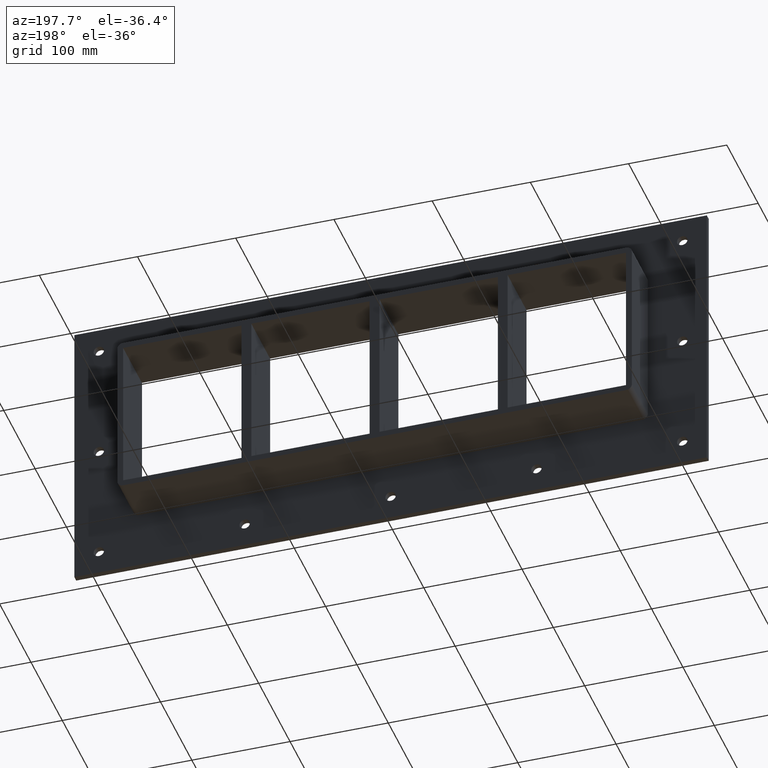
[diagram: clean part render]
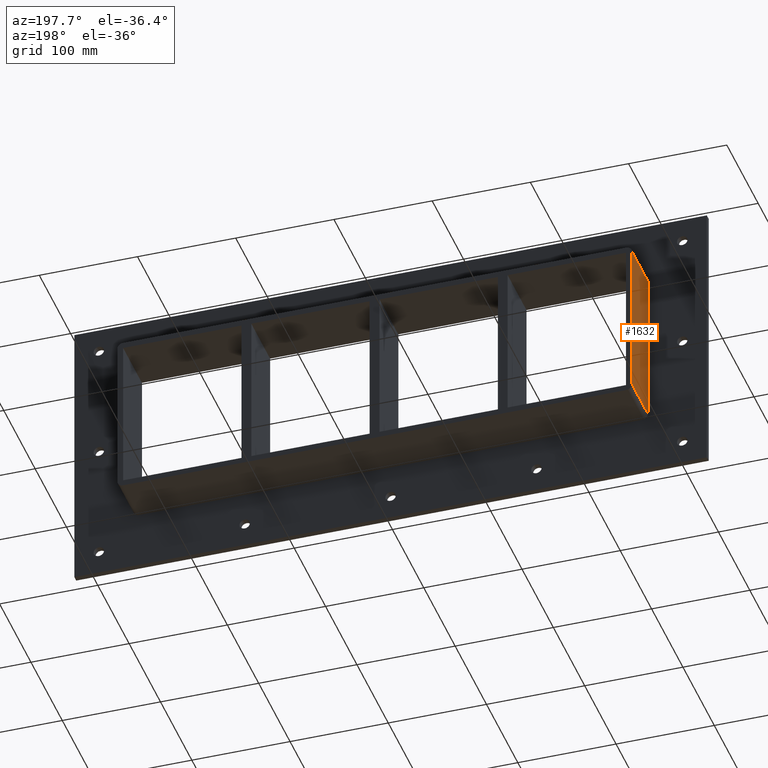
[diagram: same view with one face highlighted and labeled with its STEP entity id]
A machine part, auxiliary view. The second image highlights one B-rep face of the part: STEP entity #1632.
In plain terms, the highlighted planar face has unit normal (-1, 0, 0).
Its self-contained STEP definition (entity closure, byte-faithful):
#933=CARTESIAN_POINT('',(-262.0,6.000000000000001,-79.750000000000028));
#934=VERTEX_POINT('',#933);
#984=CARTESIAN_POINT('',(-262.0,6.000000000000001,79.750000000000028));
#985=VERTEX_POINT('',#984);
#993=CARTESIAN_POINT('',(-262.0,6.000000000000001,-79.750000000000028));
#994=DIRECTION('',(0.0,0.0,1.0));
#995=VECTOR('',#994,159.50000000000006);
#996=LINE('',#993,#995);
#997=EDGE_CURVE('',#934,#985,#996,.T.);
#1590=CARTESIAN_POINT('',(-262.0,57.0,-79.750000000000028));
#1591=VERTEX_POINT('',#1590);
#1592=CARTESIAN_POINT('',(-262.0,6.000000000000001,-79.750000000000028));
#1593=DIRECTION('',(0.0,1.0,0.0));
#1594=VECTOR('',#1593,51.0);
#1595=LINE('',#1592,#1594);
#1596=EDGE_CURVE('',#934,#1591,#1595,.T.);
#1609=CARTESIAN_POINT('',(-262.0,0.0,-85.750000000000028));
#1610=DIRECTION('',(-1.0,0.0,0.0));
#1611=DIRECTION('',(0.0,0.0,1.0));
#1612=AXIS2_PLACEMENT_3D('',#1609,#1610,#1611);
#1613=PLANE('',#1612);
#1614=ORIENTED_EDGE('',*,*,#997,.T.);
#1615=CARTESIAN_POINT('',(-262.0,57.0,79.750000000000014));
#1616=VERTEX_POINT('',#1615);
#1617=CARTESIAN_POINT('',(-262.0,57.0,79.750000000000028));
#1618=DIRECTION('',(0.0,-1.0,0.0));
#1619=VECTOR('',#1618,51.0);
#1620=LINE('',#1617,#1619);
#1621=EDGE_CURVE('',#1616,#985,#1620,.T.);
#1622=ORIENTED_EDGE('',*,*,#1621,.F.);
#1623=CARTESIAN_POINT('',(-262.0,57.0,-79.750000000000028));
#1624=DIRECTION('',(0.0,0.0,1.0));
#1625=VECTOR('',#1624,159.50000000000006);
#1626=LINE('',#1623,#1625);
#1627=EDGE_CURVE('',#1591,#1616,#1626,.T.);
#1628=ORIENTED_EDGE('',*,*,#1627,.F.);
#1629=ORIENTED_EDGE('',*,*,#1596,.F.);
#1630=EDGE_LOOP('',(#1614,#1622,#1628,#1629));
#1631=FACE_OUTER_BOUND('',#1630,.T.);
#1632=ADVANCED_FACE('',(#1631),#1613,.T.);